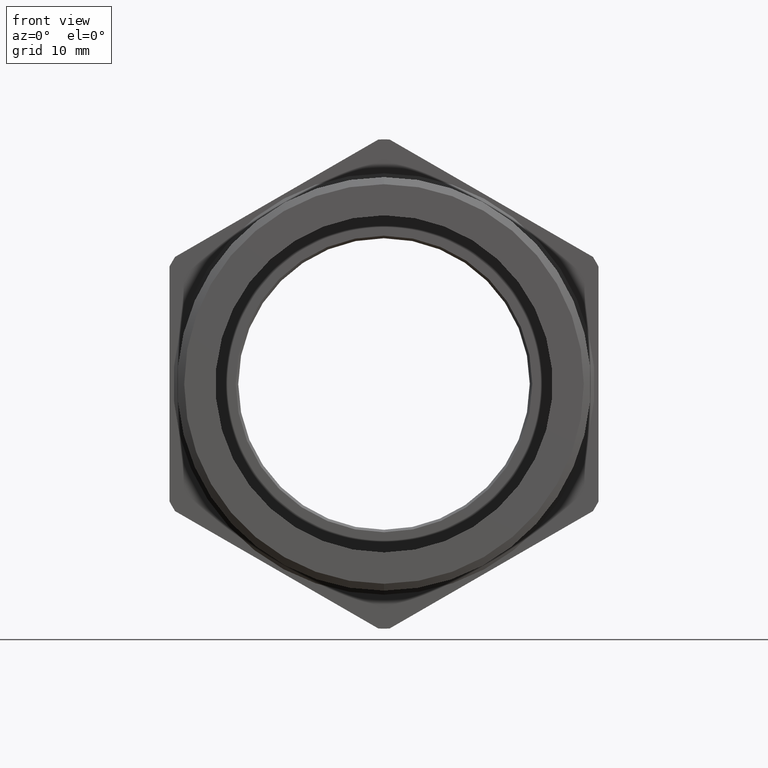
[diagram: clean part render]
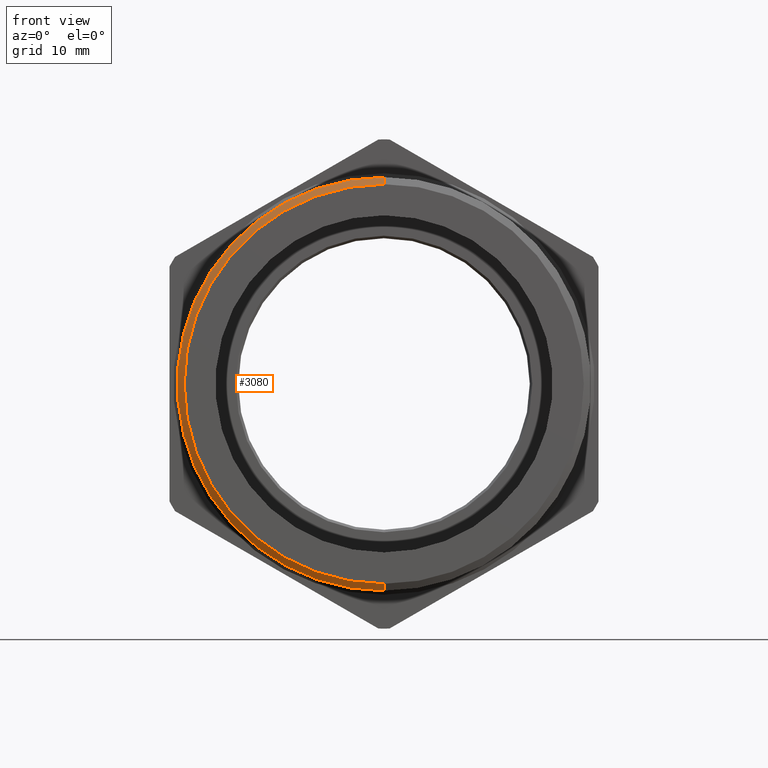
[diagram: same view with one face highlighted and labeled with its STEP entity id]
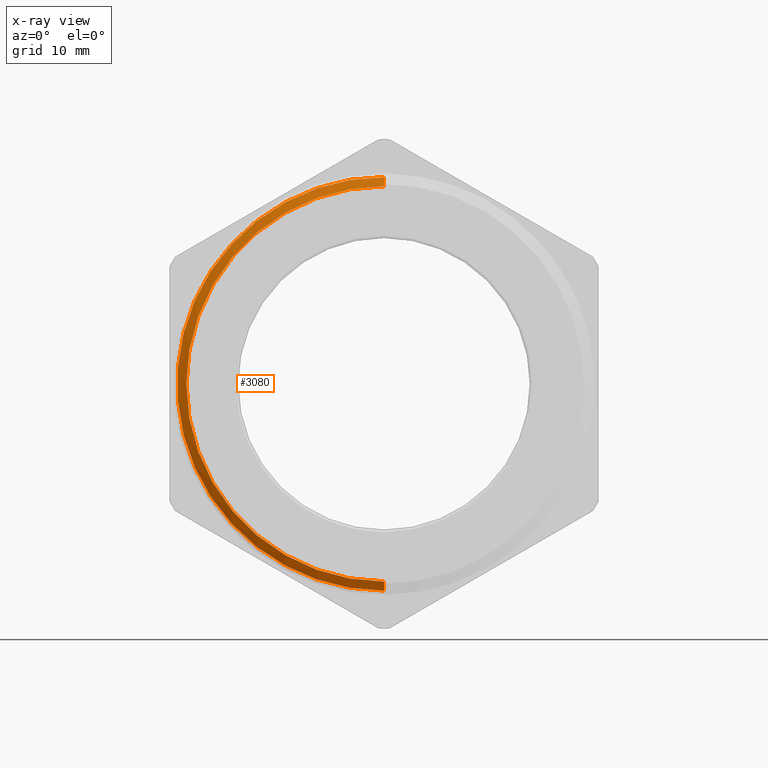
[diagram: x-ray of the same camera — body ghosted, the highlighted face saturated]
A machine part, front view. The second image highlights one B-rep face of the part: STEP entity #3080.
The next image is the same camera in x-ray: the body ghosted, the highlighted face saturated — about 0% of this face is hidden behind the body in this view.
In plain terms, the highlighted conical surface has half-angle 56.5 deg.
Its self-contained STEP definition (entity closure, byte-faithful):
#100 = CARTESIAN_POINT ( 'NONE',  ( 0.0000000000000000000, 0.02991809865329619600, -0.8047679086268464400 ) ) ;
#101 = DIRECTION ( 'NONE',  ( 1.021215602848915300E-016, 0.5519369853120601500, -0.8338858220671668800 ) ) ;
#102 = VECTOR ( 'NONE', #101, 39.37007874015748100 ) ;
#103 = CARTESIAN_POINT ( 'NONE',  ( 9.418766724205962600E-017, 0.006310467686671468100, -0.7691006689245971600 ) ) ;
#104 = LINE ( 'NONE', #103, #102 ) ;
#110 = CARTESIAN_POINT ( 'NONE',  ( 9.855564433563770300E-017, 0.02991809865329619600, 0.8047679086268464400 ) ) ;
#1061 = DIRECTION ( 'NONE',  ( 0.0000000000000000000, 0.0000000000000000000, 1.000000000000000000 ) ) ;
#1062 = DIRECTION ( 'NONE',  ( 0.0000000000000000000, 1.000000000000000000, 0.0000000000000000000 ) ) ;
#1063 = CARTESIAN_POINT ( 'NONE',  ( 0.0000000000000000000, 0.02991809865329619600, 0.0000000000000000000 ) ) ;
#1064 = AXIS2_PLACEMENT_3D ( 'NONE', #1063, #1062, #1061 ) ;
#1065 = CIRCLE ( 'NONE', #1064, 0.8047679086268464400 ) ;
#1858 = DIRECTION ( 'NONE',  ( -0.0000000000000000000, -1.000000000000000000, -0.0000000000000000000 ) ) ;
#1859 = CARTESIAN_POINT ( 'NONE',  ( 0.0000000000000000000, 0.006310467686671468100, 0.0000000000000000000 ) ) ;
#1860 = AXIS2_PLACEMENT_3D ( 'NONE', #1859, #1858, #1910 ) ;
#1861 = CIRCLE ( 'NONE', #1860, 0.7691006689245971600 ) ;
#1862 = DIRECTION ( 'NONE',  ( 0.0000000000000000000, 0.0000000000000000000, 1.000000000000000000 ) ) ;
#1863 = DIRECTION ( 'NONE',  ( 0.0000000000000000000, 1.000000000000000000, 0.0000000000000000000 ) ) ;
#1864 = AXIS2_PLACEMENT_3D ( 'NONE', #1866, #1863, #1862 ) ;
#1865 = CONICAL_SURFACE ( 'NONE', #1864, 0.7691006689245971600, 0.9861110273767939000 ) ;
#1866 = CARTESIAN_POINT ( 'NONE',  ( 0.0000000000000000000, 0.006310467686671468100, 0.0000000000000000000 ) ) ;
#1867 = FACE_OUTER_BOUND ( 'NONE', #3081, .T. ) ;
#1910 = DIRECTION ( 'NONE',  ( 0.0000000000000000000, 0.0000000000000000000, -1.000000000000000000 ) ) ;
#1996 = DIRECTION ( 'NONE',  ( 0.0000000000000000000, 0.5519369853120601500, 0.8338858220671668800 ) ) ;
#2015 = VERTEX_POINT ( 'NONE', #3305 ) ;
#2020 = VERTEX_POINT ( 'NONE', #3299 ) ;
#2041 = EDGE_CURVE ( 'NONE', #2015, #2043, #3317, .T. ) ;
#2043 = VERTEX_POINT ( 'NONE', #110 ) ;
#2047 = EDGE_CURVE ( 'NONE', #2020, #2050, #104, .T. ) ;
#2050 = VERTEX_POINT ( 'NONE', #100 ) ;
#2556 = EDGE_CURVE ( 'NONE', #2050, #2043, #1065, .T. ) ;
#3080 = ADVANCED_FACE ( 'NONE', ( #1867 ), #1865, .T. ) ;
#3081 = EDGE_LOOP ( 'NONE', ( #3082, #3083, #3085, #3086 ) ) ;
#3082 = ORIENTED_EDGE ( 'NONE', *, *, #2047, .F. ) ;
#3083 = ORIENTED_EDGE ( 'NONE', *, *, #3084, .F. ) ;
#3084 = EDGE_CURVE ( 'NONE', #2015, #2020, #1861, .T. ) ;
#3085 = ORIENTED_EDGE ( 'NONE', *, *, #2041, .T. ) ;
#3086 = ORIENTED_EDGE ( 'NONE', *, *, #2556, .F. ) ;
#3299 = CARTESIAN_POINT ( 'NONE',  ( 9.637165578884865200E-017, 0.006310467686671468100, -0.7691006689245971600 ) ) ;
#3305 = CARTESIAN_POINT ( 'NONE',  ( 0.0000000000000000000, 0.006310467686671468100, 0.7691006689245971600 ) ) ;
#3315 = VECTOR ( 'NONE', #1996, 39.37007874015748100 ) ;
#3316 = CARTESIAN_POINT ( 'NONE',  ( 0.0000000000000000000, 0.006310467686671468100, 0.7691006689245971600 ) ) ;
#3317 = LINE ( 'NONE', #3316, #3315 ) ;